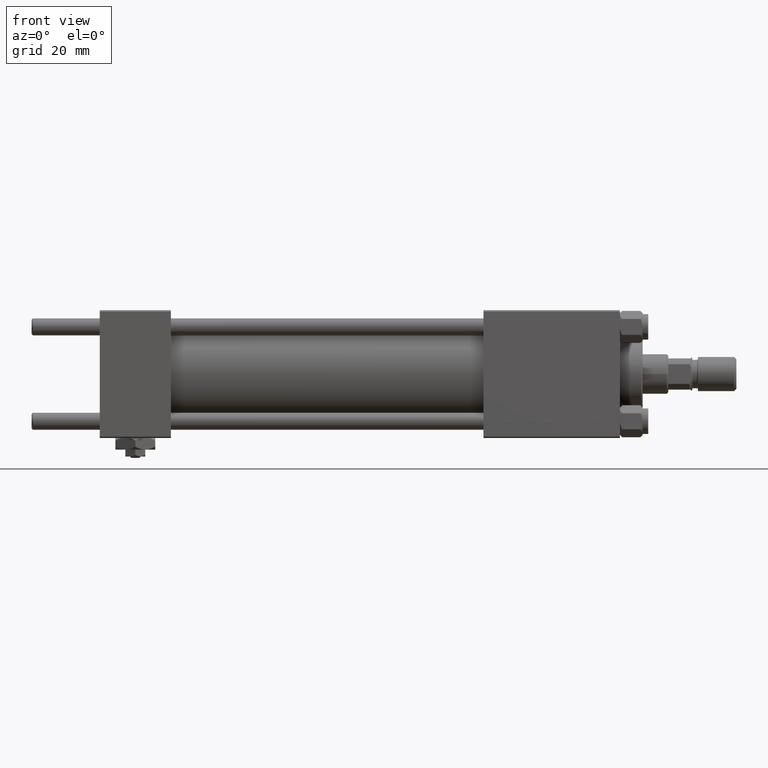
[diagram: clean part render]
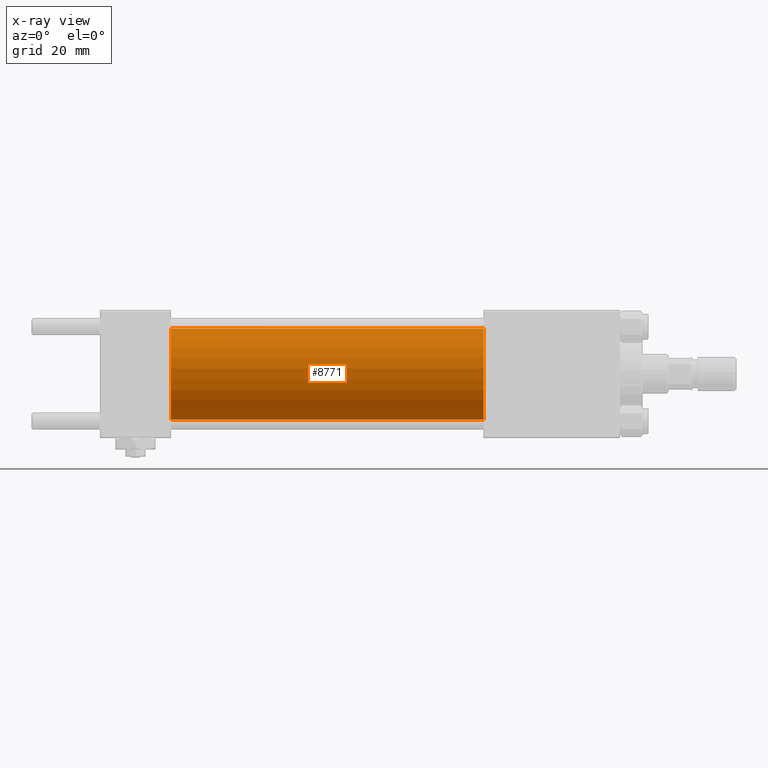
[diagram: x-ray — body ghosted, one internal face saturated and labeled with its STEP entity id]
A machine part, front view, then the same camera in x-ray: the body is ghosted and one INTERNAL B-rep face — a face not visible from any outside direction — is saturated and labeled: STEP entity #8771.
In plain terms, the highlighted cylindrical surface (partial cylindrical patch) has radius 16 mm, axis along (-1, -0, -0).
Its self-contained STEP definition (entity closure, byte-faithful):
#2152 = ORIENTED_EDGE ( 'NONE', *, *, #18168, .T. ) ;
#4616 = DIRECTION ( 'NONE',  ( 1.000000000000000000, 0.000000000000000000, 0.000000000000000000 ) ) ;
#5369 = VECTOR ( 'NONE', #20562, 1000.000000000000000 ) ;
#8426 = CIRCLE ( 'NONE', #11831, 16.00000000000000000 ) ;
#8445 = CIRCLE ( 'NONE', #47952, 16.00000000000000000 ) ;
#8771 = ADVANCED_FACE ( 'NONE', ( #20391 ), #25104, .F. ) ;
#11831 = AXIS2_PLACEMENT_3D ( 'NONE', #24617, #4616, #24099 ) ;
#11954 = ORIENTED_EDGE ( 'NONE', *, *, #38845, .F. ) ;
#14822 = DIRECTION ( 'NONE',  ( -1.000000000000000000, -0.000000000000000000, -0.000000000000000000 ) ) ;
#16532 = EDGE_LOOP ( 'NONE', ( #40287, #2152, #11954, #27347 ) ) ;
#17135 = LINE ( 'NONE', #48705, #5369 ) ;
#18168 = EDGE_CURVE ( 'NONE', #31926, #27820, #22456, .T. ) ;
#20391 = FACE_OUTER_BOUND ( 'NONE', #16532, .T. ) ;
#20562 = DIRECTION ( 'NONE',  ( -1.000000000000000000, -0.000000000000000000, -0.000000000000000000 ) ) ;
#22456 = LINE ( 'NONE', #34560, #28278 ) ;
#23881 = DIRECTION ( 'NONE',  ( 1.000000000000000000, 0.000000000000000000, 0.000000000000000000 ) ) ;
#24099 = DIRECTION ( 'NONE',  ( 0.000000000000000000, 0.000000000000000000, -1.000000000000000000 ) ) ;
#24617 = CARTESIAN_POINT ( 'NONE',  ( 25.00000000000000000, 0.000000000000000000, 0.000000000000000000 ) ) ;
#25104 = CYLINDRICAL_SURFACE ( 'NONE', #40160, 16.00000000000000000 ) ;
#25280 = EDGE_CURVE ( 'NONE', #27288, #31926, #8445, .T. ) ;
#27288 = VERTEX_POINT ( 'NONE', #51740 ) ;
#27347 = ORIENTED_EDGE ( 'NONE', *, *, #50655, .F. ) ;
#27820 = VERTEX_POINT ( 'NONE', #50574 ) ;
#28278 = VECTOR ( 'NONE', #14822, 1000.000000000000000 ) ;
#31926 = VERTEX_POINT ( 'NONE', #48078 ) ;
#32483 = DIRECTION ( 'NONE',  ( 0.000000000000000000, 0.000000000000000000, 1.000000000000000000 ) ) ;
#34560 = CARTESIAN_POINT ( 'NONE',  ( 135.0000000000000000, 1.959434878635765131E-15, -16.00000000000000000 ) ) ;
#36433 = DIRECTION ( 'NONE',  ( -1.000000000000000000, -0.000000000000000000, -0.000000000000000000 ) ) ;
#38845 = EDGE_CURVE ( 'NONE', #42489, #27820, #8426, .T. ) ;
#40160 = AXIS2_PLACEMENT_3D ( 'NONE', #41158, #36433, #32483 ) ;
#40287 = ORIENTED_EDGE ( 'NONE', *, *, #25280, .T. ) ;
#40453 = CARTESIAN_POINT ( 'NONE',  ( 135.0000000000000000, 0.000000000000000000, 0.000000000000000000 ) ) ;
#41158 = CARTESIAN_POINT ( 'NONE',  ( 135.0000000000000000, 0.000000000000000000, 0.000000000000000000 ) ) ;
#42489 = VERTEX_POINT ( 'NONE', #48077 ) ;
#47559 = DIRECTION ( 'NONE',  ( 0.000000000000000000, 0.000000000000000000, -1.000000000000000000 ) ) ;
#47952 = AXIS2_PLACEMENT_3D ( 'NONE', #40453, #23881, #47559 ) ;
#48077 = CARTESIAN_POINT ( 'NONE',  ( 25.00000000000000000, 0.000000000000000000, 16.00000000000000000 ) ) ;
#48078 = CARTESIAN_POINT ( 'NONE',  ( 135.0000000000000000, 1.959434878635765131E-15, -16.00000000000000000 ) ) ;
#48705 = CARTESIAN_POINT ( 'NONE',  ( 135.0000000000000000, 0.000000000000000000, 16.00000000000000000 ) ) ;
#50574 = CARTESIAN_POINT ( 'NONE',  ( 25.00000000000000000, 1.959434878635765131E-15, -16.00000000000000000 ) ) ;
#50655 = EDGE_CURVE ( 'NONE', #27288, #42489, #17135, .T. ) ;
#51740 = CARTESIAN_POINT ( 'NONE',  ( 135.0000000000000000, 0.000000000000000000, 16.00000000000000000 ) ) ;